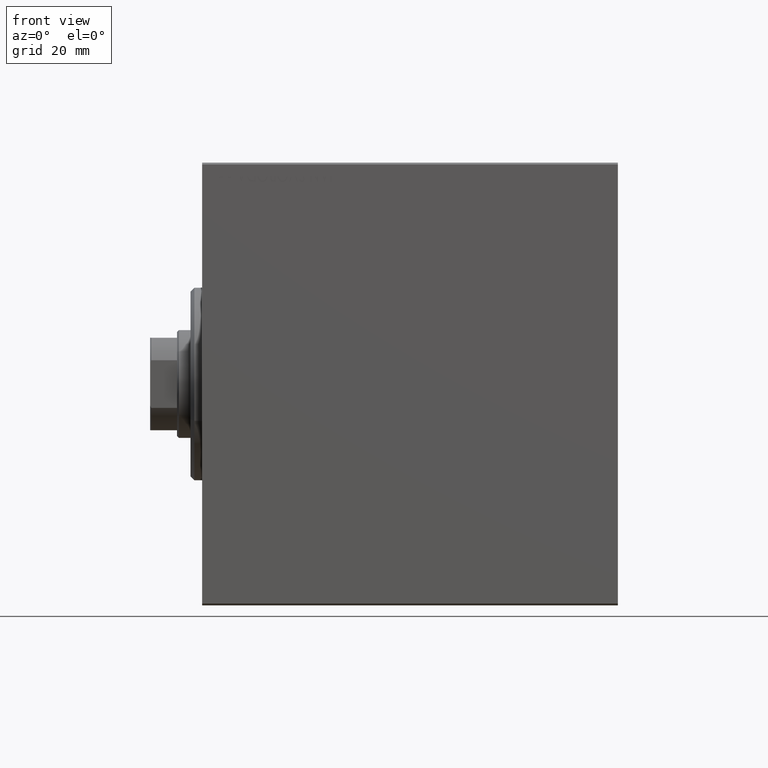
[diagram: clean part render]
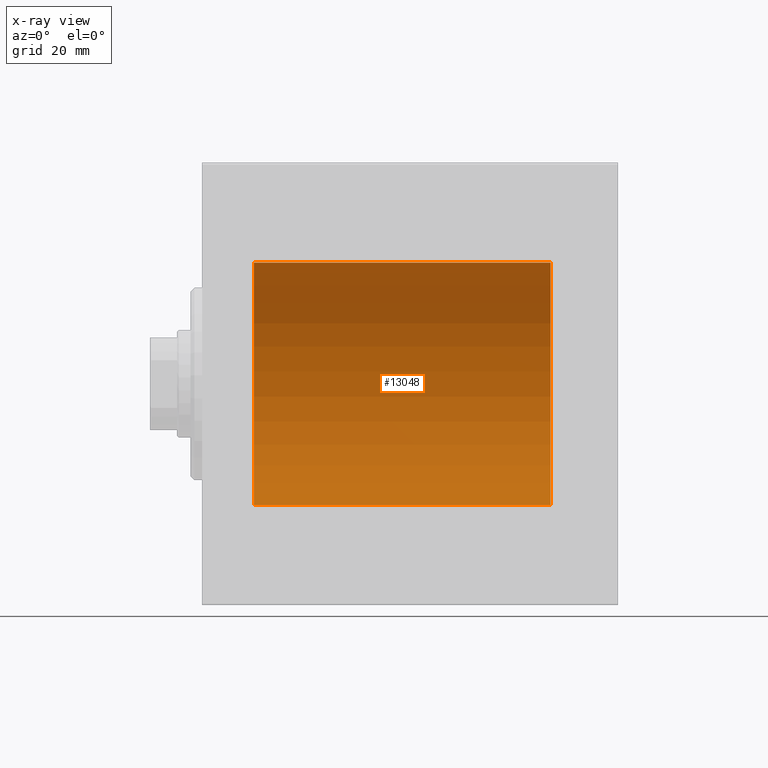
[diagram: x-ray — body ghosted, one internal face saturated and labeled with its STEP entity id]
A machine part, front view, then the same camera in x-ray: the body is ghosted and one INTERNAL B-rep face — a face not visible from any outside direction — is saturated and labeled: STEP entity #13048.
In plain terms, the highlighted cylindrical surface (partial cylindrical patch) has radius 31.5 mm, axis along (-1, -0, -0).
Its self-contained STEP definition (entity closure, byte-faithful):
#8067 = EDGE_CURVE ( 'NONE', #36333, #8729, #13575, .T. ) ;
#8536 = EDGE_CURVE ( 'NONE', #11742, #13926, #38989, .T. ) ;
#8729 = VERTEX_POINT ( 'NONE', #16909 ) ;
#8948 = CARTESIAN_POINT ( 'NONE',  ( 13.49999999999999822, 0.000000000000000000, 0.000000000000000000 ) ) ;
#10892 = DIRECTION ( 'NONE',  ( -1.000000000000000000, -0.000000000000000000, -0.000000000000000000 ) ) ;
#10949 = CARTESIAN_POINT ( 'NONE',  ( 90.50000000000000000, 0.000000000000000000, 31.50000000000000000 ) ) ;
#11292 = CARTESIAN_POINT ( 'NONE',  ( 13.49999999999999822, 3.857637417314162689E-15, -31.50000000000000000 ) ) ;
#11742 = VERTEX_POINT ( 'NONE', #28462 ) ;
#12131 = FACE_OUTER_BOUND ( 'NONE', #21069, .T. ) ;
#13048 = ADVANCED_FACE ( 'NONE', ( #12131 ), #28943, .F. ) ;
#13575 = CIRCLE ( 'NONE', #34054, 31.50000000000000000 ) ;
#13621 = VECTOR ( 'NONE', #10892, 1000.000000000000000 ) ;
#13926 = VERTEX_POINT ( 'NONE', #11292 ) ;
#14359 = DIRECTION ( 'NONE',  ( -1.000000000000000000, 0.000000000000000000, 0.000000000000000000 ) ) ;
#15448 = DIRECTION ( 'NONE',  ( 0.000000000000000000, 0.000000000000000000, 1.000000000000000000 ) ) ;
#16909 = CARTESIAN_POINT ( 'NONE',  ( 90.50000000000000000, 3.857637417314162689E-15, -31.50000000000000000 ) ) ;
#17510 = CARTESIAN_POINT ( 'NONE',  ( 90.50000000000000000, 3.857637417314162689E-15, -31.50000000000000000 ) ) ;
#20183 = LINE ( 'NONE', #17510, #13621 ) ;
#20295 = EDGE_CURVE ( 'NONE', #36333, #11742, #24221, .T. ) ;
#21069 = EDGE_LOOP ( 'NONE', ( #28853, #35262, #35604, #28590 ) ) ;
#21338 = DIRECTION ( 'NONE',  ( -1.000000000000000000, -0.000000000000000000, -0.000000000000000000 ) ) ;
#22540 = DIRECTION ( 'NONE',  ( -1.000000000000000000, -0.000000000000000000, -0.000000000000000000 ) ) ;
#22718 = VECTOR ( 'NONE', #21338, 1000.000000000000000 ) ;
#22901 = DIRECTION ( 'NONE',  ( -1.000000000000000000, 0.000000000000000000, 0.000000000000000000 ) ) ;
#23799 = EDGE_CURVE ( 'NONE', #8729, #13926, #20183, .T. ) ;
#24096 = DIRECTION ( 'NONE',  ( 0.000000000000000000, 0.000000000000000000, 1.000000000000000000 ) ) ;
#24221 = LINE ( 'NONE', #10949, #22718 ) ;
#28462 = CARTESIAN_POINT ( 'NONE',  ( 13.49999999999999822, 0.000000000000000000, 31.50000000000000000 ) ) ;
#28590 = ORIENTED_EDGE ( 'NONE', *, *, #8536, .T. ) ;
#28853 = ORIENTED_EDGE ( 'NONE', *, *, #23799, .F. ) ;
#28943 = CYLINDRICAL_SURFACE ( 'NONE', #36400, 31.50000000000000000 ) ;
#33346 = AXIS2_PLACEMENT_3D ( 'NONE', #8948, #22901, #42819 ) ;
#34054 = AXIS2_PLACEMENT_3D ( 'NONE', #34290, #14359, #24096 ) ;
#34290 = CARTESIAN_POINT ( 'NONE',  ( 90.50000000000000000, 0.000000000000000000, 0.000000000000000000 ) ) ;
#35262 = ORIENTED_EDGE ( 'NONE', *, *, #8067, .F. ) ;
#35604 = ORIENTED_EDGE ( 'NONE', *, *, #20295, .T. ) ;
#36333 = VERTEX_POINT ( 'NONE', #37487 ) ;
#36400 = AXIS2_PLACEMENT_3D ( 'NONE', #39561, #22540, #15448 ) ;
#37487 = CARTESIAN_POINT ( 'NONE',  ( 90.50000000000000000, 0.000000000000000000, 31.50000000000000000 ) ) ;
#38989 = CIRCLE ( 'NONE', #33346, 31.50000000000000000 ) ;
#39561 = CARTESIAN_POINT ( 'NONE',  ( 90.50000000000000000, 0.000000000000000000, 0.000000000000000000 ) ) ;
#42819 = DIRECTION ( 'NONE',  ( 0.000000000000000000, 0.000000000000000000, 1.000000000000000000 ) ) ;